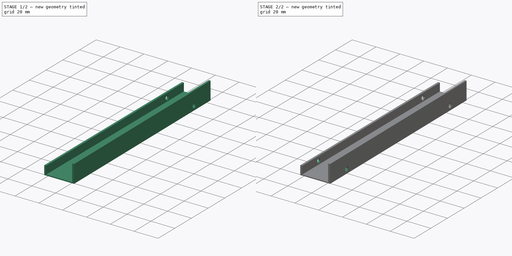
[diagram: build sequence overview — one tinted view per stage of 2, left to right]
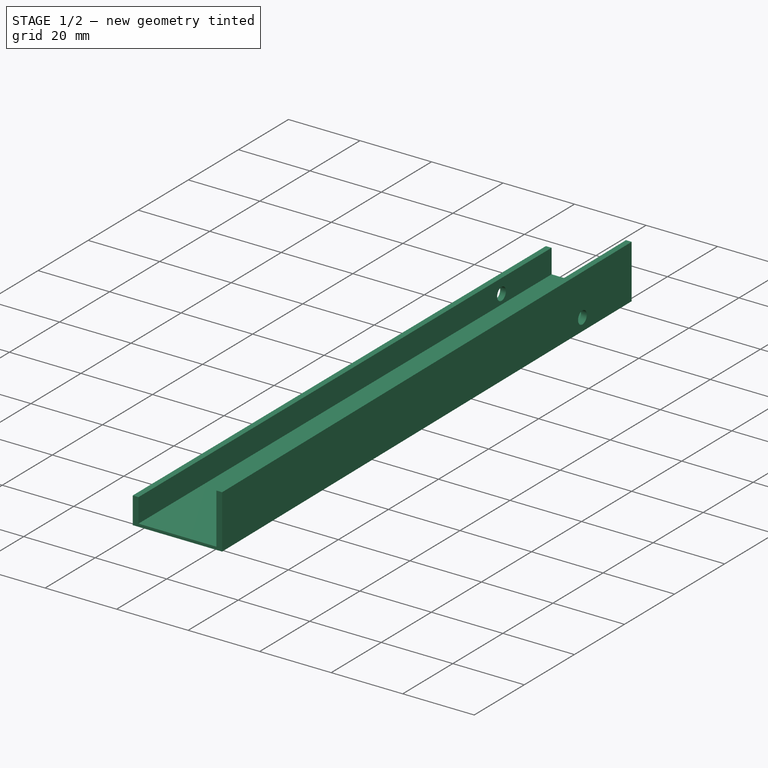
[diagram: stage 1 of 2 — iso view after this stage's code; geometry added in this stage tinted green]
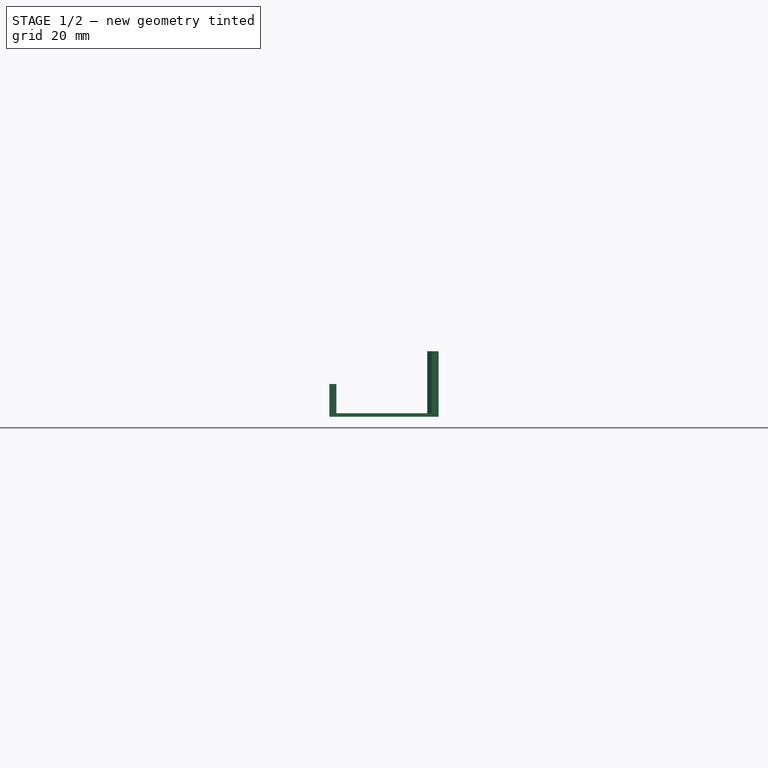
[diagram: stage 1 of 2 — front view after this stage's code; geometry added in this stage tinted green]
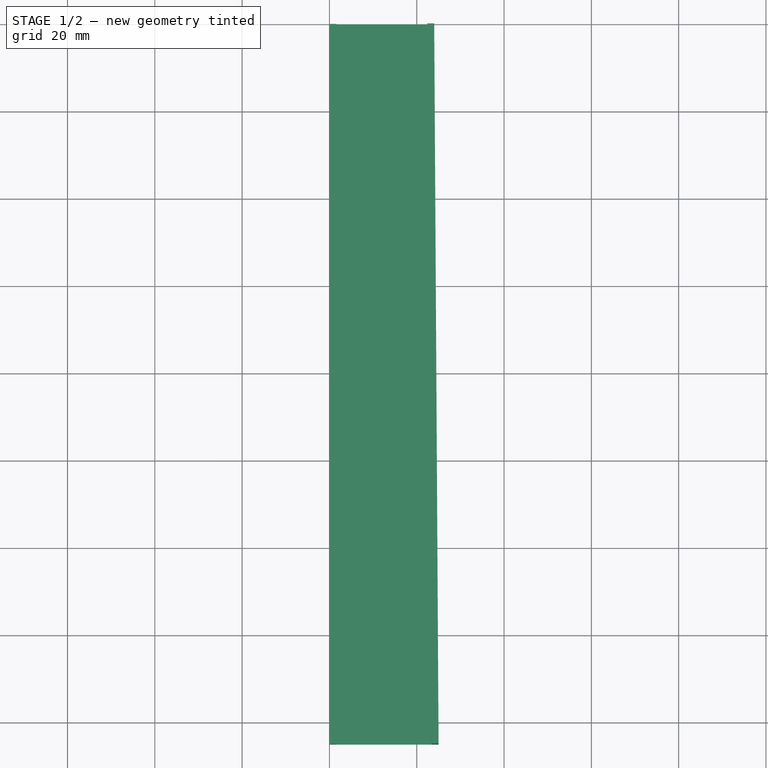
[diagram: stage 1 of 2 — top view after this stage's code; geometry added in this stage tinted green]
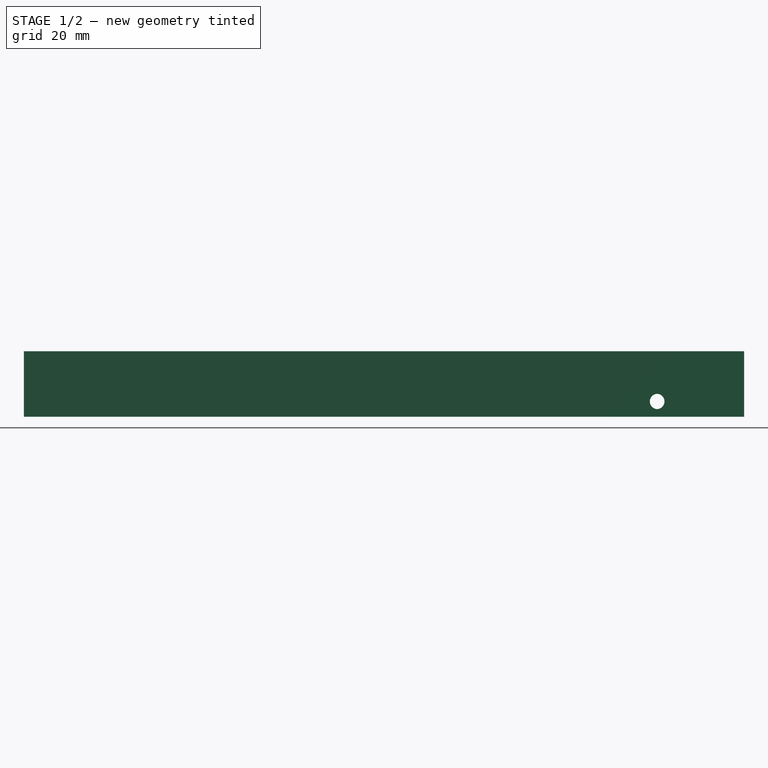
[diagram: stage 1 of 2 — right view after this stage's code; geometry added in this stage tinted green]
FCSTD DOCUMENT  (FreeCAD 1.0R39109 (Git))
Label: Cable Tunnel Support
License: All rights reserved
LicenseURL: http://en.wikipedia.org/wiki/All_rights_reserved
objects: Sketcher::SketchObject×3, Spreadsheet::Sheet×1, PartDesign::Plane×1, PartDesign::AdditiveLoft×1, PartDesign::Pocket×1, PartDesign::LinearPattern×1, PartDesign::Body×1
note: 16 computed .brp shape members not serialized (recipe doc carries the construction recipe); baked Part::Feature solids carry a one-line shape summary decoded from their .brp

FEATURE [Sketcher::SketchObject] Sketch
  ArcFitTolerance = 1e-06
  AttachmentSupport = -> [XZ_Plane]
  FullyConstrained = true
  MakeInternals = false
  MapMode = 5
  Placement = pos=(0,0,0) rot=(1,0,0;1.5708rad)
  expr: Constraints[17] = Spreadsheet.thickness_1
  expr: Constraints[18] = Spreadsheet.thickness_2
  expr: Constraints[19] = Spreadsheet.width_1
  expr: Constraints[20] = Spreadsheet.width_2
  expr: Constraints[21] = Spreadsheet.depth_1
  expr: Constraints[22] = Spreadsheet.thickness_1
  sketch-geometry (8):
    g0: LineSegment StartX=0 StartY=0 StartZ=0 EndX=24 EndY=0 EndZ=0
    g1: LineSegment StartX=24 StartY=0 StartZ=0 EndX=24 EndY=15 EndZ=0
    g2: LineSegment StartX=24 StartY=15 StartZ=0 EndX=22.4 EndY=15 EndZ=0
    g3: LineSegment StartX=22.4 StartY=15 StartZ=0 EndX=22.4 EndY=0.8 EndZ=0
    g4: LineSegment StartX=0 StartY=0 StartZ=0 EndX=0 EndY=7.5 EndZ=0
    g5: LineSegment StartX=0 StartY=7.5 StartZ=0 EndX=1.6 EndY=7.5 EndZ=0
    g6: LineSegment StartX=1.6 StartY=7.5 StartZ=0 EndX=1.6 EndY=0.8 EndZ=0
    g7: LineSegment StartX=1.6 StartY=0.8 StartZ=0 EndX=22.4 EndY=0.8 EndZ=0
  constraints (23):
    c: Coincident(g0,g-1)
    c: Horizontal(g0)
    c: Coincident(g1,g0)
    c: Vertical(g1)
    c: Coincident(g2,g1)
    c: Horizontal(g2)
    c: Coincident(g3,g2)
    c: Vertical(g3)
    c: Coincident(g4,g0)
    c: Vertical(g4)
    c: Coincident(g5,g4)
    c: Horizontal(g5)
    c: Coincident(g6,g5)
    c: Vertical(g6)
    c: Coincident(g7,g6)
    c: Coincident(g7,g3)
    c: Horizontal(g7)
    c: DistanceX(g0,g6) = 1.6
    c: DistanceY(g0,g6) = 0.8
    c: DistanceY(g0,g4) = 7.5
    c: DistanceY(g0,g1) = 15
    c: DistanceX(g0,g0) = 24
    c: DistanceX(g3,g0) = 1.6
FEATURE [Spreadsheet::Sheet] Spreadsheet
  cells = A1='length; B1(length)=165; A2='depth_1; B2(depth_1)=24; A3='depth_2; B3(depth_2)=25; A4='width_1; B4(width_1)=7.5; A5='width_2; B5(width_2)=15; A6='thickness_1; B6(thickness_1)=1.6; A7='hole_edge_distance; B7(hole_edge_distance)=20; A8='hole_diameter; B8(hole_diameter)=3.5; A9='number_of_holes; B9(number_of_holes)=2; A10='hole_offset; B10(hole_offset)=3.5; A11='thickness_2; B11(thickness_2)=0.8
FEATURE [PartDesign::Plane] DatumPlane
  AttachmentOffset = pos=(0,0,165) rot=(0,0,1;0rad)
  AttachmentSupport = -> [XZ_Plane]
  Length = 60
  MapMode = 5
  Placement = pos=(0,-165,3.66e-14) rot=(1,0,0;1.5708rad)
  ResizeMode = 0
  Width = 60
  expr: .AttachmentOffset.Base.z = Spreadsheet.length
FEATURE [Sketcher::SketchObject] Sketch001
  ArcFitTolerance = 1e-06
  AttachmentSupport = -> [DatumPlane]
  FullyConstrained = true
  MakeInternals = false
  MapMode = 5
  Placement = pos=(0,-165,3.66e-14) rot=(1,0,0;1.5708rad)
  expr: Constraints[17] = Spreadsheet.depth_2
  expr: Constraints[18] = Spreadsheet.width_1
  expr: Constraints[19] = Spreadsheet.width_2
  expr: Constraints[20] = Spreadsheet.thickness_1
  expr: Constraints[21] = Spreadsheet.thickness_2
  expr: Constraints[22] = Spreadsheet.thickness_1
  sketch-geometry (8):
    g0: LineSegment StartX=0 StartY=0 StartZ=0 EndX=0 EndY=7.5 EndZ=0
    g1: LineSegment StartX=0 StartY=7.5 StartZ=0 EndX=1.6 EndY=7.5 EndZ=0
    g2: LineSegment StartX=1.6 StartY=7.5 StartZ=0 EndX=1.6 EndY=0.8 EndZ=0
    g3: LineSegment StartX=1.6 StartY=0.8 StartZ=0 EndX=23.4 EndY=0.8 EndZ=0
    g4: LineSegment StartX=23.4 StartY=0.8 StartZ=0 EndX=23.4 EndY=15 EndZ=0
    g5: LineSegment StartX=23.4 StartY=15 StartZ=0 EndX=25 EndY=15 EndZ=0
    g6: LineSegment StartX=25 StartY=15 StartZ=0 EndX=25 EndY=0 EndZ=0
    g7: LineSegment StartX=25 StartY=0 StartZ=0 EndX=0 EndY=0 EndZ=0
  constraints (23):
    c: Coincident(g0,g-1)
    c: Vertical(g0)
    c: Coincident(g1,g0)
    c: Horizontal(g1)
    c: Coincident(g2,g1)
    c: Vertical(g2)
    c: Coincident(g3,g2)
    c: Horizontal(g3)
    c: Coincident(g4,g3)
    c: Vertical(g4)
    c: Coincident(g5,g4)
    c: Horizontal(g5)
    c: Coincident(g6,g5)
    c: Vertical(g6)
    c: Coincident(g7,g6)
    c: Coincident(g7,g0)
    c: Horizontal(g7)
    c: DistanceX(g0,g6) = 25
    c: DistanceY(g0,g0) = 7.5
    c: DistanceY(g0,g5) = 15
    c: DistanceX(g0,g2) = 1.6
    c: DistanceY(g0,g2) = 0.8
    c: DistanceX(g3,g6) = 1.6
FEATURE [PartDesign::AdditiveLoft] AdditiveLoft
  Closed = false
  Placement = pos=(0,0,0) rot=(1,0,0;1.5708rad)
  Profile = -> Sketch
  Ruled = false
  Sections = -> [Sketch001]
  Suppressed = false
FEATURE [Sketcher::SketchObject] Sketch002
  ArcFitTolerance = 1e-06
  AttachmentSupport = -> [AdditiveLoft]
  FullyConstrained = true
  MakeInternals = false
  MapMode = 5
  Placement = pos=(23.9991,0.145449,0) rot=(0.707105,0.002143,0.707105;3.14588rad)
  expr: Constraints[0] = Spreadsheet.hole_diameter
  expr: Constraints[1] = Spreadsheet.hole_offset
  expr: Constraints[2] = Spreadsheet.hole_edge_distance
  sketch-geometry (1):
    g0: Circle CenterX=3.5 CenterY=20 CenterZ=0 NormalX=0 NormalY=0 NormalZ=1 AngleXU=0 Radius=1.75
  constraints (3):
    c: Diameter(g0) = 3.5
    c: DistanceX(g-1,g0) = 3.5
    c: DistanceY(g-1,g0) = 20
FEATURE [PartDesign::Pocket] Pocket
  BaseFeature = -> AdditiveLoft
  Direction = (-0.999982,-0.00606049,0)
  Length = 5
  Length2 = 5
  Midplane = true
  Placement = pos=(0,0,0) rot=(1,0,0;1.5708rad)
  Profile = -> Sketch002
  ReferenceAxis = -> Sketch002 [N_Axis]
  Suppressed = false
  Type = 1
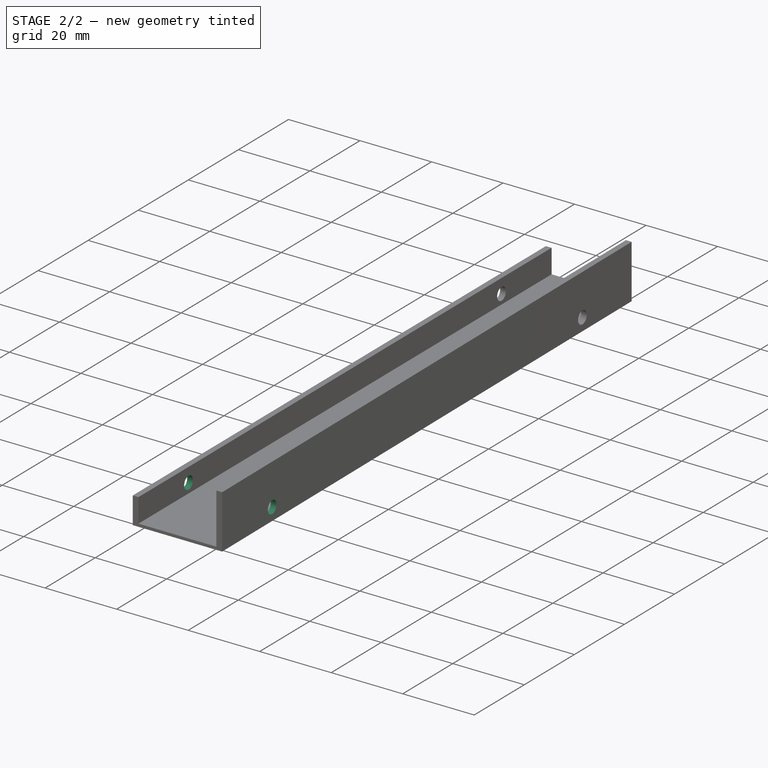
[diagram: stage 2 of 2 — iso view after this stage's code; geometry added in this stage tinted green]
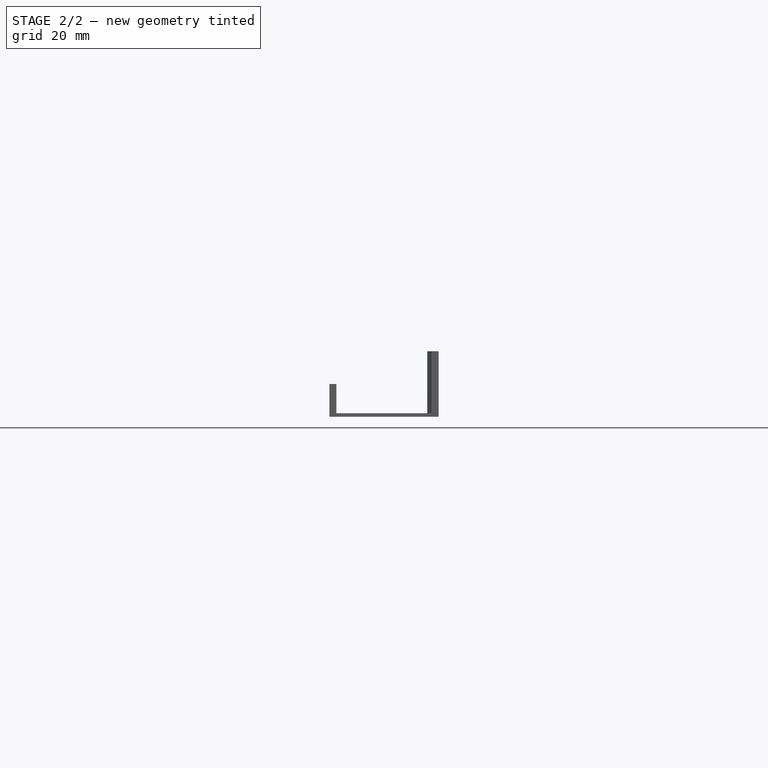
[diagram: stage 2 of 2 — front view after this stage's code; geometry added in this stage tinted green]
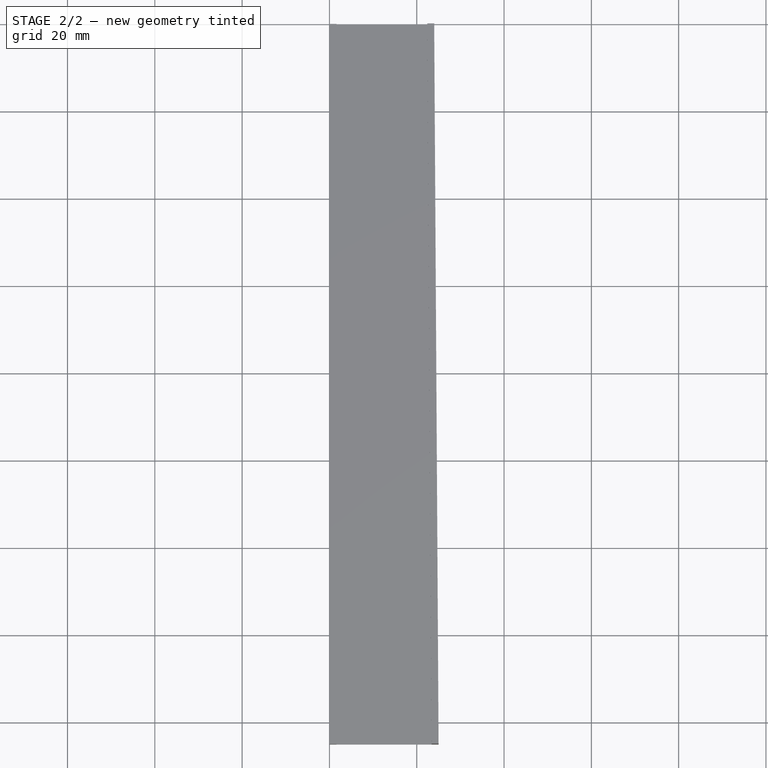
[diagram: stage 2 of 2 — top view after this stage's code; geometry added in this stage tinted green]
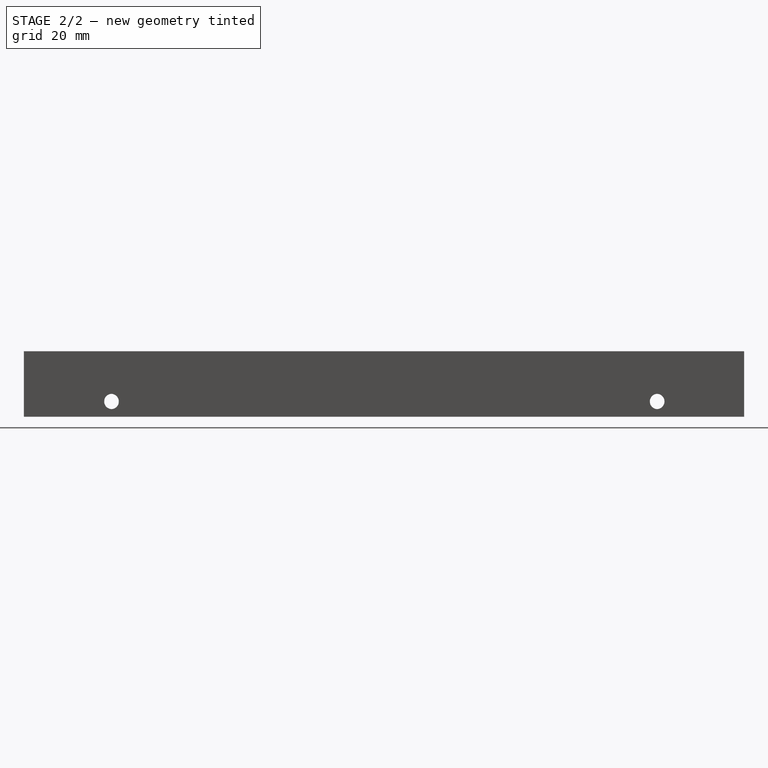
[diagram: stage 2 of 2 — right view after this stage's code; geometry added in this stage tinted green]
FEATURE [PartDesign::LinearPattern] LinearPattern
  BaseFeature = -> Pocket
  Direction = -> Y_Axis
  Length = 125
  Mode = 0
  Occurrences = 2
  Offset = 125
  Originals = -> [Pocket]
  Placement = pos=(0,0,0) rot=(1,0,0;1.5708rad)
  Reversed = true
  Suppressed = false
  TransformMode = 0
  expr: Length = Spreadsheet.length - Spreadsheet.hole_edge_distance * 2
  expr: Occurrences = Spreadsheet.number_of_holes
FEATURE [PartDesign::Body] Body
  AllowCompound = false
  Group = -> [Sketch,DatumPlane,Sketch001,AdditiveLoft,Sketch002,Pocket,LinearPattern]
  Origin = -> Origin
  Tip = -> LinearPattern
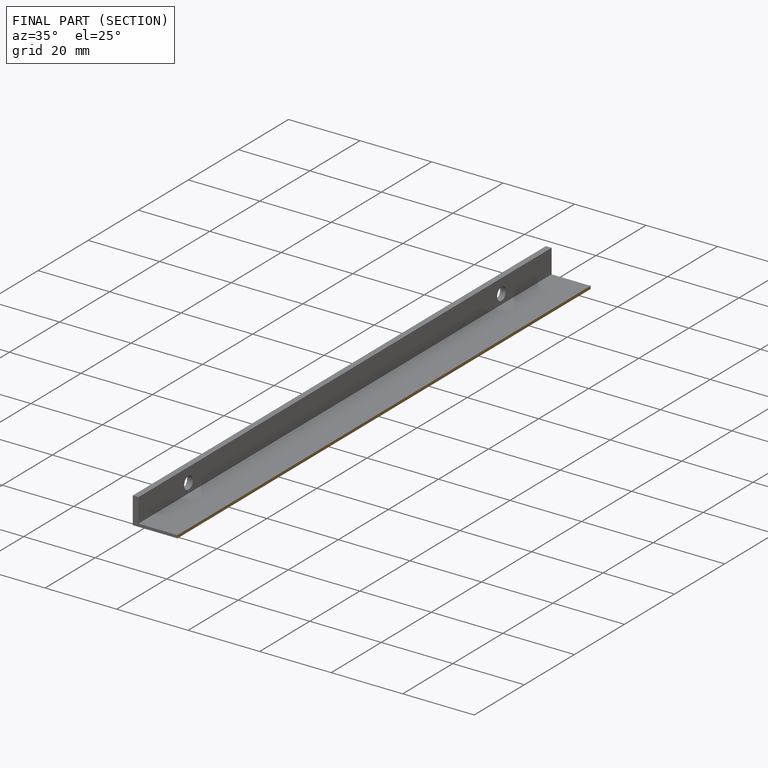
[diagram: finished part — half-section view (interior)]
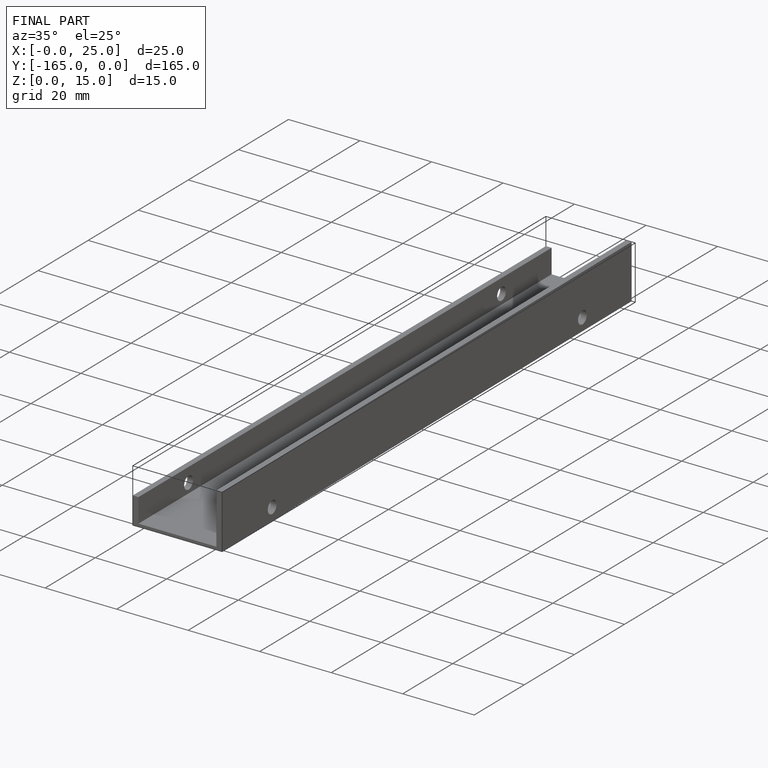
[diagram: finished part — iso view with bounding-box wireframe]
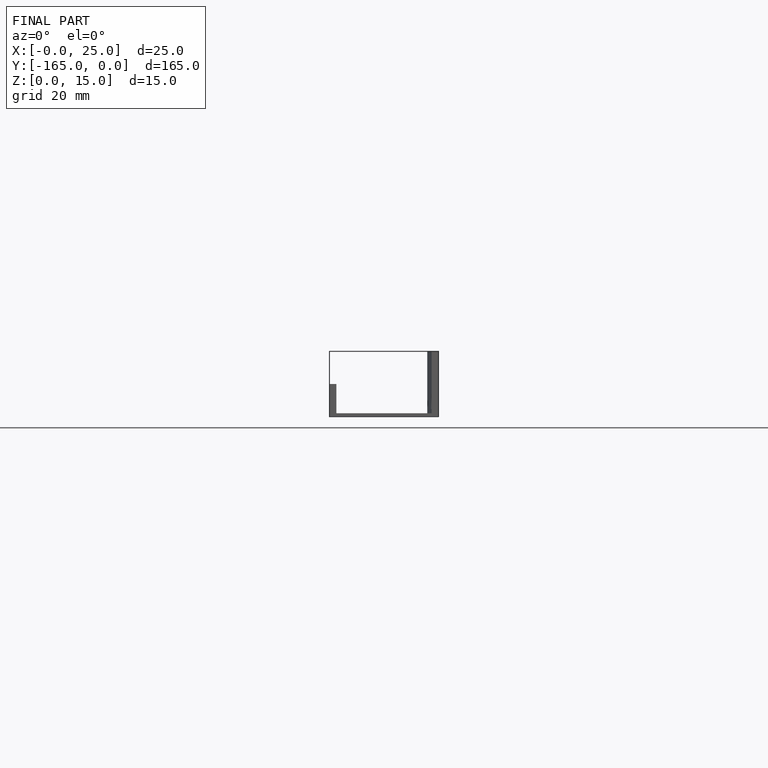
[diagram: finished part — front view with bounding-box wireframe]
